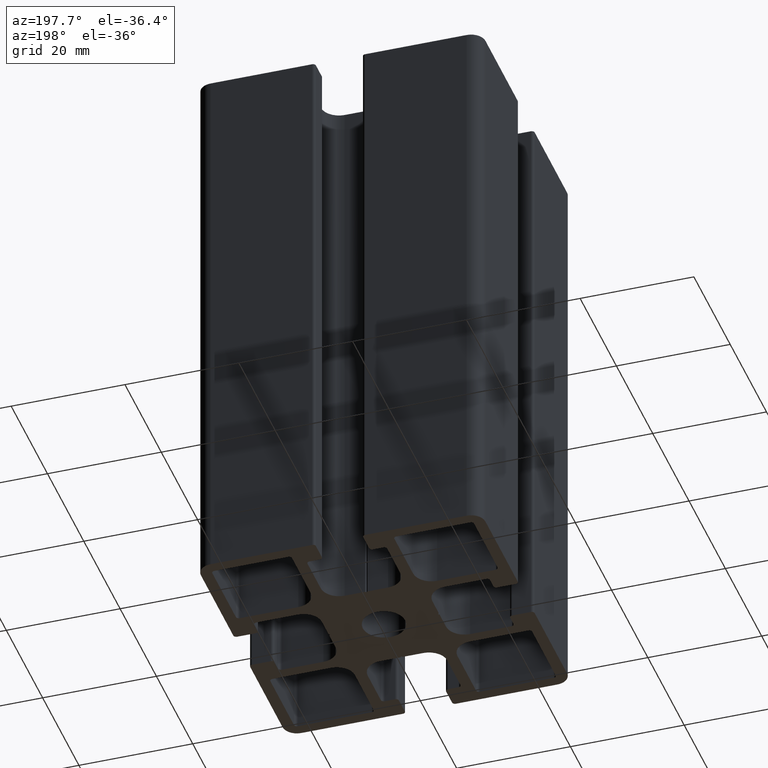
[diagram: clean part render]
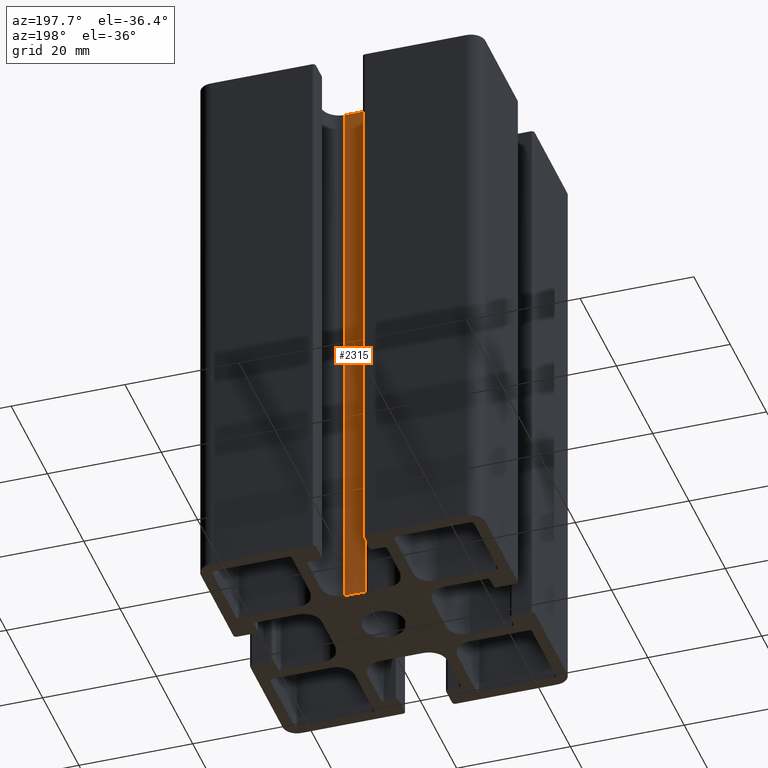
[diagram: same view with one face highlighted and labeled with its STEP entity id]
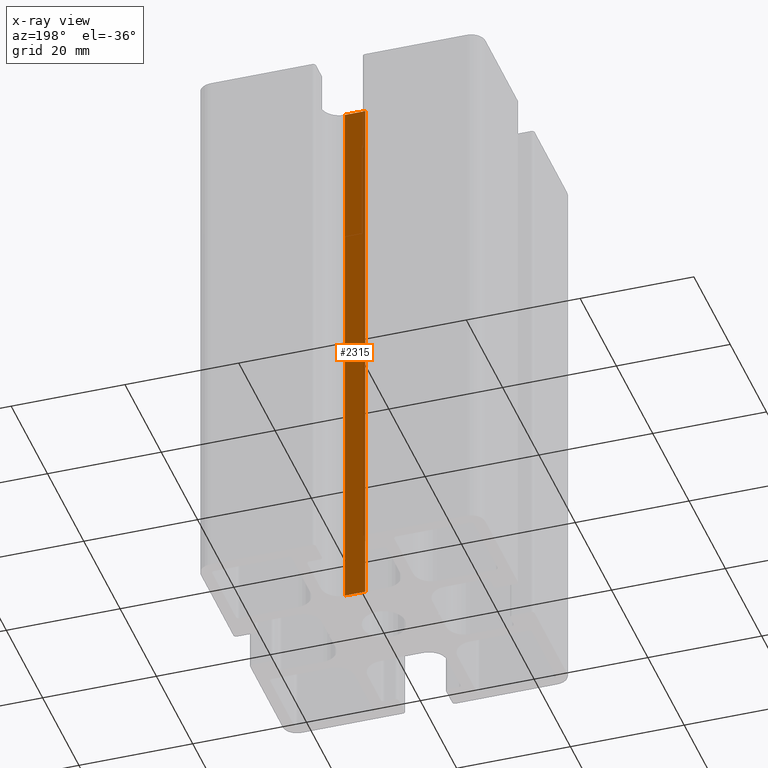
[diagram: x-ray of the same camera — body ghosted, the highlighted face saturated]
A machine part, auxiliary view. The second image highlights one B-rep face of the part: STEP entity #2315.
The next image is the same camera in x-ray: the body ghosted, the highlighted face saturated — about 11% of this face is hidden behind the body in this view.
In plain terms, the highlighted planar face has unit normal (0, 1, 0).
Its self-contained STEP definition (entity closure, byte-faithful):
#48=PLANE('',#2478);
#135=FACE_OUTER_BOUND('',#255,.T.);
#255=EDGE_LOOP('',(#1689,#1690,#1691,#1692));
#427=LINE('',#3574,#671);
#428=LINE('',#3577,#672);
#429=LINE('',#3579,#673);
#430=LINE('',#3580,#674);
#671=VECTOR('',#2876,100.);
#672=VECTOR('',#2879,3.60000000000007);
#673=VECTOR('',#2880,3.60000000000007);
#674=VECTOR('',#2881,100.);
#1021=VERTEX_POINT('',#3570);
#1022=VERTEX_POINT('',#3572);
#1023=VERTEX_POINT('',#3576);
#1024=VERTEX_POINT('',#3578);
#1297=EDGE_CURVE('',#1021,#1022,#427,.T.);
#1298=EDGE_CURVE('',#1023,#1021,#428,.T.);
#1299=EDGE_CURVE('',#1024,#1022,#429,.T.);
#1300=EDGE_CURVE('',#1023,#1024,#430,.T.);
#1689=ORIENTED_EDGE('',*,*,#1298,.T.);
#1690=ORIENTED_EDGE('',*,*,#1297,.T.);
#1691=ORIENTED_EDGE('',*,*,#1299,.F.);
#1692=ORIENTED_EDGE('',*,*,#1300,.F.);
#2315=ADVANCED_FACE('',(#135),#48,.T.);
#2478=AXIS2_PLACEMENT_3D('',#3575,#2877,#2878);
#2876=DIRECTION('',(0.,0.,1.));
#2877=DIRECTION('center_axis',(1.97372982155579E-14,1.,0.));
#2878=DIRECTION('ref_axis',(-1.,1.97175609173428E-14,0.));
#2879=DIRECTION('',(-1.,1.97372982155579E-14,0.));
#2880=DIRECTION('',(-1.,1.97372982155579E-14,0.));
#2881=DIRECTION('',(0.,0.,1.));
#3570=CARTESIAN_POINT('',(0.200000000000022,9.70000000000147,0.));
#3572=CARTESIAN_POINT('',(0.200000000000022,9.70000000000147,100.));
#3574=CARTESIAN_POINT('',(0.200000000000022,9.70000000000147,0.));
#3575=CARTESIAN_POINT('Origin',(3.8000000000001,9.7000000000014,0.));
#3576=CARTESIAN_POINT('',(3.8000000000001,9.7000000000014,0.));
#3577=CARTESIAN_POINT('',(3.8000000000001,9.7000000000014,0.));
#3578=CARTESIAN_POINT('',(3.8000000000001,9.7000000000014,100.));
#3579=CARTESIAN_POINT('',(3.8000000000001,9.7000000000014,100.));
#3580=CARTESIAN_POINT('',(3.8000000000001,9.7000000000014,0.));